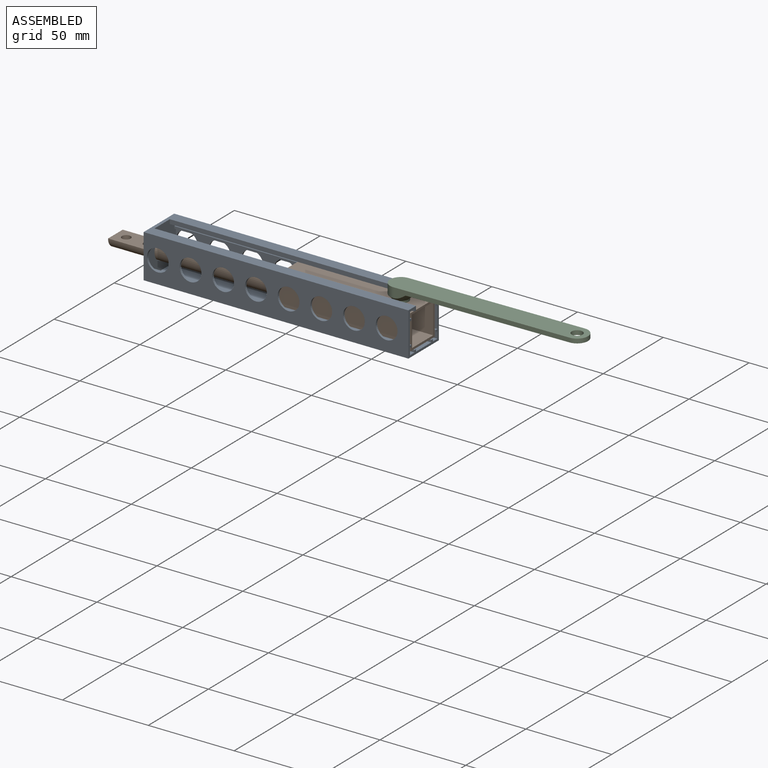
[diagram: assembled view]
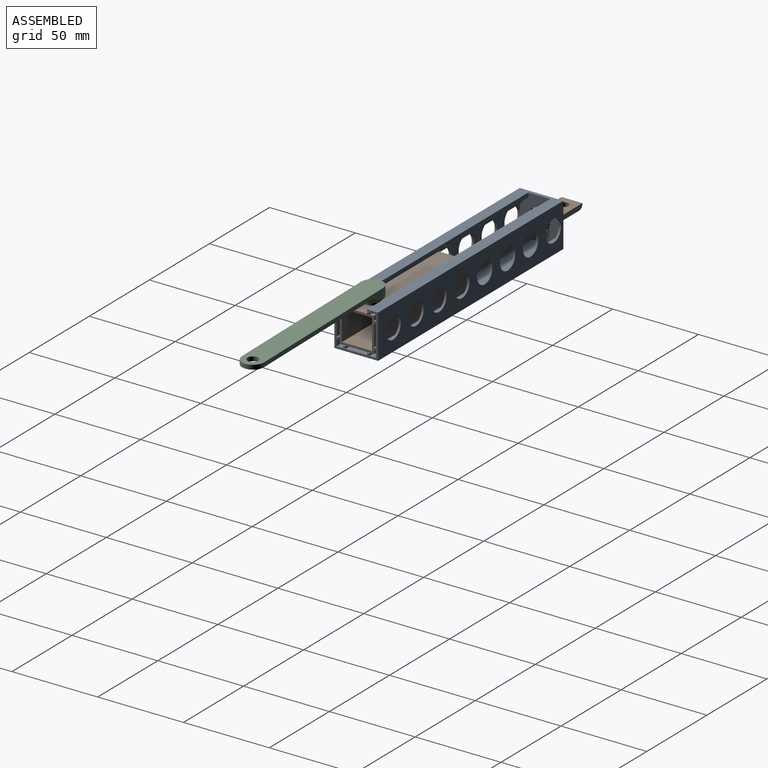
[diagram: assembled view, second angle]
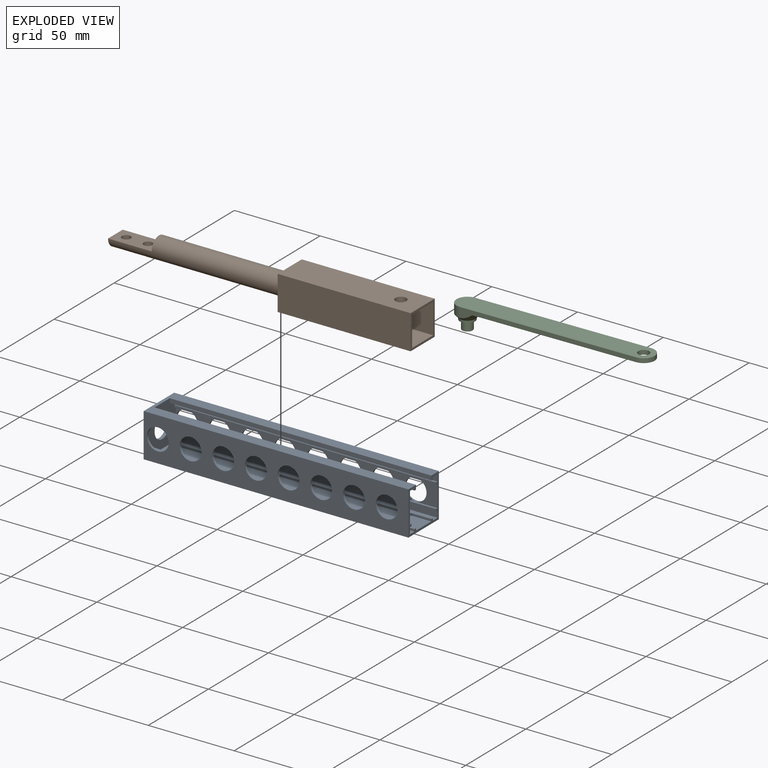
[diagram: exploded view]
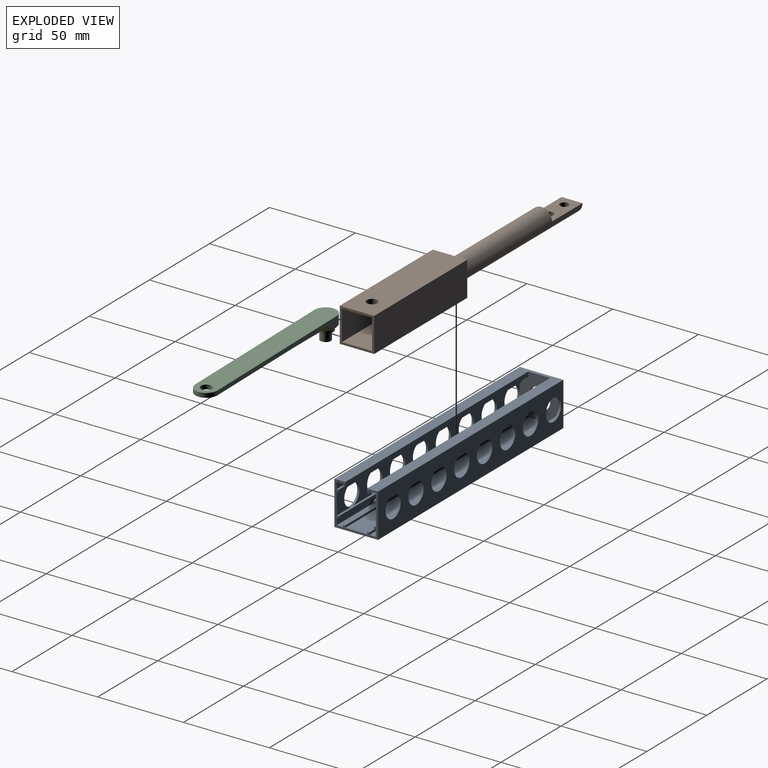
[diagram: exploded view, second angle]
ASSEMBLY  parts=3 mates=4
PART A: 77 faces, bbox 154.3x25.4x25.4 mm
  f0: plane 19.05x12.7mm, normal (0,-1,0), area 115.3mm2, adj f33,f35,f75,f76
  f1: plane 6.35x6.35mm, normal (0,-1,0), area 8.7mm2, adj f18,f33,f76
  f2: plane 19.05x12.7mm, normal (0,-1,0), area 115.3mm2, adj f33,f35,f74,f75
  f3: plane 19.05x12.7mm, normal (0,-1,0), area 115.3mm2, adj f33,f35,f73,f74
  f4: plane 19.05x12.7mm, normal (0,-1,0), area 115.3mm2, adj f33,f35,f72,f73
  f5: plane 19.05x12.7mm, normal (0,-1,0), area 115.3mm2, adj f33,f35,f71,f72
  f6: plane 19.05x12.7mm, normal (0,-1,0), area 115.3mm2, adj f33,f35,f70,f71
  f7: plane 19.05x12.7mm, normal (0,-1,0), area 115.3mm2, adj f33,f35,f69,f70
  f8: plane 12.7x12.7mm, normal (0,-1,0), area 98mm2, adj f33,f35,f60,f69
  f9: plane 19.05x12.7mm, normal (0,1,0), area 115.3mm2, adj f51,f53,f67,f68
  f10: plane 6.35x6.35mm, normal (0,1,0), area 8.7mm2, adj f18,f51,f68
  f11: plane 19.05x12.7mm, normal (0,1,0), area 115.3mm2, adj f51,f53,f66,f67
  f12: plane 19.05x12.7mm, normal (0,1,0), area 115.3mm2, adj f51,f53,f65,f66
  f13: plane 19.05x12.7mm, normal (0,1,0), area 115.3mm2, adj f51,f53,f64,f65
  f14: plane 19.05x12.7mm, normal (0,1,0), area 115.3mm2, adj f51,f53,f63,f64
  f15: plane 19.05x12.7mm, normal (0,1,0), area 115.3mm2, adj f51,f53,f62,f63
  f16: plane 19.05x12.7mm, normal (0,1,0), area 115.3mm2, adj f51,f53,f61,f62
  f17: plane 12.7x12.7mm, normal (0,1,0), area 98mm2, adj f51,f53,f60,f61
  f18: plane 24.13x22.86mm, normal (1,0,0), area 399.1mm2, adj f1,f10,f22,f23,f25,f26,f27,f28
  f19: plane 154.31x25.4mm, normal (0,-1,0), area 2905.9mm2, adj f20,f22,f24,f60,f61,f62,f63,f64
  f20: plane 154.31x25.4mm, normal (0,0,-1), area 3919.3mm2, adj f19,f21,f24,f60
  f21: plane 154.31x25.4mm, normal (0,1,0), area 2905.9mm2, adj f20,f22,f24,f60,f69,f70,f71,f72
  f22: plane 154.31x25.4mm, normal (0,0,1), area 1983.9mm2, adj f18,f19,f21,f24,f25,f26,f60
  f23: cylinder r=6.35mm len=12.7mm, axis (-1,0,0), area 76mm2, adj f18,f24
  f24: plane 25.4x25.4mm, normal (-1,0,0), area 518.5mm2, adj f19,f20,f21,f22,f23
  f25: plane 152.4x2.54mm, normal (0,1,0), area 387.1mm2, adj f18,f22,f59,f60
  f26: plane 152.4x2.54mm, normal (0,-1,0), area 387.1mm2, adj f18,f22,f27,f60
  f27: plane 152.4x1.27mm, normal (0,0,-1), area 193.5mm2, adj f18,f26,f28,f60
  f28: plane 152.4x1.27mm, normal (0,1,0), area 193.5mm2, adj f18,f27,f29,f60
  f29: plane 152.4x3.81mm, normal (0,0,-1), area 580.6mm2, adj f18,f28,f30,f60
  f30: plane 152.4x3.81mm, normal (0,-1,0), area 580.6mm2, adj f18,f29,f31,f60
  f31: plane 152.4x1.27mm, normal (0,0,1), area 193.5mm2, adj f18,f30,f32,f60
  f32: plane 152.4x1.27mm, normal (0,-1,0), area 193.5mm2, adj f18,f31,f33,f60
  f33: plane 152.4x1.27mm, normal (0,0,-1), area 193.5mm2, adj f0,f1,f2,f3,f4,f5,f6,f7
  f34: plane 6.35x6.35mm, normal (0,-1,0), area 8.7mm2, adj f18,f35,f76
  f35: plane 152.4x1.27mm, normal (0,0,1), area 193.5mm2, adj f0,f2,f3,f4,f5,f6,f7,f8
  f36: plane 152.4x1.27mm, normal (0,-1,0), area 193.5mm2, adj f18,f35,f37,f60
  f37: plane 152.4x1.27mm, normal (0,0,-1), area 193.5mm2, adj f18,f36,f38,f60
  f38: plane 152.4x3.81mm, normal (0,-1,0), area 580.6mm2, adj f18,f37,f39,f60
  f39: plane 152.4x3.81mm, normal (0,0,1), area 580.6mm2, adj f18,f38,f40,f60
  f40: plane 152.4x1.27mm, normal (0,1,0), area 193.5mm2, adj f18,f39,f41,f60
  f41: plane 152.4x1.27mm, normal (0,0,1), area 193.5mm2, adj f18,f40,f42,f60
  f42: plane 152.4x1.27mm, normal (0,-1,0), area 193.5mm2, adj f18,f41,f43,f60
  f43: plane 152.4x12.7mm, normal (0,0,1), area 1935.5mm2, adj f18,f42,f44,f60
  f44: plane 152.4x1.27mm, normal (0,1,0), area 193.5mm2, adj f18,f43,f45,f60
  f45: plane 152.4x1.27mm, normal (0,0,1), area 193.5mm2, adj f18,f44,f46,f60
  f46: plane 152.4x1.27mm, normal (0,-1,0), area 193.5mm2, adj f18,f45,f47,f60
  f47: plane 152.4x3.81mm, normal (0,0,1), area 580.6mm2, adj f18,f46,f48,f60
  f48: plane 152.4x3.81mm, normal (0,1,0), area 580.6mm2, adj f18,f47,f49,f60
  f49: plane 152.4x1.27mm, normal (0,0,-1), area 193.5mm2, adj f18,f48,f50,f60
  f50: plane 152.4x1.27mm, normal (0,1,0), area 193.5mm2, adj f18,f49,f51,f60
  f51: plane 152.4x1.27mm, normal (0,0,1), area 193.5mm2, adj f9,f10,f11,f12,f13,f14,f15,f16
  f52: plane 6.35x6.35mm, normal (0,1,0), area 8.7mm2, adj f18,f53,f68
  f53: plane 152.4x1.27mm, normal (0,0,-1), area 193.5mm2, adj f9,f11,f12,f13,f14,f15,f16,f17
  f54: plane 152.4x1.27mm, normal (0,1,0), area 193.5mm2, adj f18,f53,f55,f60
  f55: plane 152.4x1.27mm, normal (0,0,1), area 193.5mm2, adj f18,f54,f56,f60
  f56: plane 152.4x3.81mm, normal (0,1,0), area 580.6mm2, adj f18,f55,f57,f60
  f57: plane 152.4x3.81mm, normal (0,0,-1), area 580.6mm2, adj f18,f56,f58,f60
  f58: plane 152.4x1.27mm, normal (0,-1,0), area 193.5mm2, adj f18,f57,f59,f60
  f59: plane 152.4x1.27mm, normal (0,0,-1), area 193.5mm2, adj f18,f25,f58,f60
  f60: plane 25.4x25.4mm, normal (1,0,0), area 119.4mm2, adj f8,f17,f19,f20,f21,f22,f25,f26
  f61: cylinder r=6.35mm len=12.7mm, axis (0,-1,0), area 50.7mm2, adj f16,f17,f19
  f62: cylinder r=6.35mm len=12.7mm, axis (0,-1,0), area 50.7mm2, adj f15,f16,f19
  f63: cylinder r=6.35mm len=12.7mm, axis (0,-1,0), area 50.7mm2, adj f14,f15,f19
  f64: cylinder r=6.35mm len=12.7mm, axis (0,-1,0), area 50.7mm2, adj f13,f14,f19
  f65: cylinder r=6.35mm len=12.7mm, axis (0,-1,0), area 50.7mm2, adj f12,f13,f19
  f66: cylinder r=6.35mm len=12.7mm, axis (0,-1,0), area 50.7mm2, adj f11,f12,f19
  f67: cylinder r=6.35mm len=12.7mm, axis (0,-1,0), area 50.7mm2, adj f9,f11,f19
  f68: cylinder r=6.35mm len=12.7mm, axis (0,-1,0), area 50.7mm2, adj f9,f10,f19,f52
  f69: cylinder r=6.35mm len=12.7mm, axis (0,-1,0), area 50.7mm2, adj f7,f8,f21
  f70: cylinder r=6.35mm len=12.7mm, axis (0,-1,0), area 50.7mm2, adj f6,f7,f21
  f71: cylinder r=6.35mm len=12.7mm, axis (0,-1,0), area 50.7mm2, adj f5,f6,f21
  f72: cylinder r=6.35mm len=12.7mm, axis (0,-1,0), area 50.7mm2, adj f4,f5,f21
  f73: cylinder r=6.35mm len=12.7mm, axis (0,-1,0), area 50.7mm2, adj f3,f4,f21
  f74: cylinder r=6.35mm len=12.7mm, axis (0,-1,0), area 50.7mm2, adj f2,f3,f21
  f75: cylinder r=6.35mm len=12.7mm, axis (0,-1,0), area 50.7mm2, adj f0,f2,f21
  f76: cylinder r=6.35mm len=12.7mm, axis (0,-1,0), area 50.7mm2, adj f0,f1,f21,f34
PART B: 41 faces, bbox 179.1x20.1x20.1 mm
  f0: plane 0.45x0.45mm, normal (1,0,0), area 0.1mm2, adj f10,f11,f28
  f1: plane 25.4x8.31mm, normal (0,-0.71,-0.71), area 179.2mm2, adj f8,f17,f23,f29
  f2: plane 25.4x8.31mm, normal (0,0.71,0.71), area 179.2mm2, adj f4,f7,f11,f28
  f3: plane 25.4x8.31mm, normal (0,0.71,-0.71), area 179.2mm2, adj f12,f19,f24,f26
  f4: plane 25.4x8.31mm, normal (0,-0.71,0.71), area 179.2mm2, adj f2,f7,f11,f26
  f5: plane 0.45x0.45mm, normal (1,0,0), area 0.1mm2, adj f10,f17,f27
  f6: plane 0.45x0.45mm, normal (1,0,0), area 0.1mm2, adj f12,f17,f29
  f7: plane 16.63x8.31mm, normal (1,0,0), area 69.1mm2, adj f2,f4,f11
  f8: plane 16.63x8.31mm, normal (1,0,0), area 69.1mm2, adj f1,f17,f23
  f9: plane 16.63x8.31mm, normal (1,0,0), area 69.1mm2, adj f10,f21,f22
  f10: plane 76.2x17.53mm, normal (0,1,0), area 1312.7mm2, adj f0,f5,f9,f11,f17,f18,f21,f22
  f11: plane 76.2x17.53mm, normal (0,0,-1), area 1250.6mm2, adj f0,f2,f4,f7,f10,f12,f18,f25
  f12: plane 76.2x17.53mm, normal (0,-1,0), area 1312.7mm2, adj f3,f6,f11,f17,f18,f19,f24,f25
  f13: plane 77.47x20.07mm, normal (0,-1,0), area 1554.5mm2, adj f14,f16,f18,f20
  f14: plane 77.47x20.07mm, normal (0,0,-1), area 1554.5mm2, adj f13,f15,f18,f20
  f15: plane 77.47x20.07mm, normal (0,1,0), area 1554.5mm2, adj f14,f16,f18,f20
  f16: plane 77.47x20.07mm, normal (0,0,1), area 1522.8mm2, adj f13,f15,f18,f20,f39
  f17: plane 76.2x17.53mm, normal (0,0,1), area 1312.7mm2, adj f1,f5,f6,f8,f10,f12,f18,f23
  f18: plane 20.07x20.07mm, normal (1,0,0), area 95.5mm2, adj f10,f11,f12,f13,f14,f15,f16,f17
  f19: plane 16.63x8.31mm, normal (1,0,0), area 69.1mm2, adj f3,f12,f24
  f20: plane 20.07x20.07mm, normal (-1,0,0), area 285.9mm2, adj f13,f14,f15,f16,f31
  f21: plane 25.4x8.31mm, normal (0,-0.71,-0.71), area 179.2mm2, adj f9,f10,f22,f28
  f22: plane 25.4x8.31mm, normal (0,-0.71,0.71), area 179.2mm2, adj f9,f10,f21,f27
  f23: plane 25.4x8.31mm, normal (0,0.71,-0.71), area 179.2mm2, adj f1,f8,f17,f27
  f24: plane 25.4x8.31mm, normal (0,0.71,0.71), area 179.2mm2, adj f3,f12,f19,f29
  f25: plane 0.45x0.45mm, normal (1,0,0), area 0.1mm2, adj f11,f12,f26
  f26: plane 20.32x8.76mm, normal (0.5,-0.61,-0.61), area 14.9mm2, adj f3,f4,f25,f30
  f27: plane 20.32x8.76mm, normal (0.5,0.61,0.61), area 14.9mm2, adj f5,f22,f23,f30
  f28: plane 20.32x8.76mm, normal (0.5,0.61,-0.61), area 14.9mm2, adj f0,f2,f21,f30
  f29: plane 20.32x8.76mm, normal (0.5,-0.61,0.61), area 14.9mm2, adj f1,f6,f24,f30
  f30: plane 0.9x0.9mm, normal (1,0,0), area 0.4mm2, adj f26,f27,f28,f29
  f31: cylinder r=6.1mm len=101.6mm, axis (1,0,0), area 3331mm2, adj f20,f32,f33,f34,f37,f38
  f32: plane 12.19x6.1mm, normal (-1,0,0), area 58.4mm2, adj f31,f33
  f33: plane 25.4x12.19mm, normal (0,0,1), area 269.1mm2, adj f31,f32,f34,f35,f36
  f34: plane 12.19x6.1mm, normal (-1,0,0), area 58.4mm2, adj f31,f33
  f35: cylinder r=2.54mm len=5.46mm, axis (0,0,1), area 87.2mm2, adj f33,f38
  f36: cylinder r=2.54mm len=5.46mm, axis (0,0,1), area 87.2mm2, adj f33,f37
  f37: bspline ~7.09x6.35mm, area 19.4mm2, adj f31,f36
  f38: bspline ~7.09x6.35mm, area 19.4mm2, adj f31,f35
  f39: cylinder r=3.17mm len=6.35mm, axis (0,0,1), area 50.7mm2, adj f16,f40
  f40: cone r=3.17mm half-angle=45deg, axis (0,0,1), area 43mm2, adj f11,f39
PART C: 12 faces, bbox 117.5x19.1x14 mm
  f0: cylinder r=4.45mm len=8.89mm, axis (0,0,-1), area 35.5mm2, adj f1,f11
  f1: plane 8.89x8.89mm, normal (0,0,1), area 32.9mm2, adj f0,f9
  f2: cylinder r=6.35mm len=12.7mm, axis (0,0,1), area 114mm2, adj f3,f5,f7,f11
  f3: plane 101.6x5.72mm, normal (0,1,0), area 272.5mm2, adj f2,f4,f7,f8,f11
  f4: cylinder r=6.35mm len=12.7mm, axis (0,0,1), area 50.7mm2, adj f3,f5,f7,f8
  f5: plane 101.6x5.72mm, normal (0,-1,0), area 272.5mm2, adj f2,f4,f7,f8,f11
  f6: cylinder r=3.17mm len=6.35mm, axis (0,0,1), area 50.7mm2, adj f7,f8
  f7: plane 114.3x12.7mm, normal (0,0,-1), area 1385.3mm2, adj f2,f3,f4,f5,f6
  f8: plane 100.85x12.7mm, normal (0,0,1), area 1210.7mm2, adj f3,f4,f5,f6,f11
  f9: cylinder r=3.05mm len=6.1mm, axis (0,0,-1), area 97.3mm2, adj f1,f10
  f10: plane 6.1x6.1mm, normal (0,0,1), area 29.2mm2, adj f9
  f11: cone r=4.45mm half-angle=45deg, axis (0,0,-1), area 159.2mm2, adj f0,f2,f3,f5,f8
PLACE A t=(-19.09,0.29,0.69)mm fixed
PLACE B t=(58.42,0.29,13.39)mm
PLACE C rot(axis=(1,0.01,0),180deg) t=(121.92,0.29,29.77)mm
MATE cylindrical B.f39 <-> C.f9  axis (0,0,1) through (121.92,0.29,23.42)mm
MATE parallel A.f22 <-> B.f16  axis (0,0,1) through (135.22,-12.41,26.09)mm
MATE cylindrical B.f31 <-> A.f23  axis (1,0,0) through (6.35,0.29,13.39)mm
MATE planar C.f2 <-> B.f16  axis (0,0,-1) through (121.92,0.29,23.42)mm
